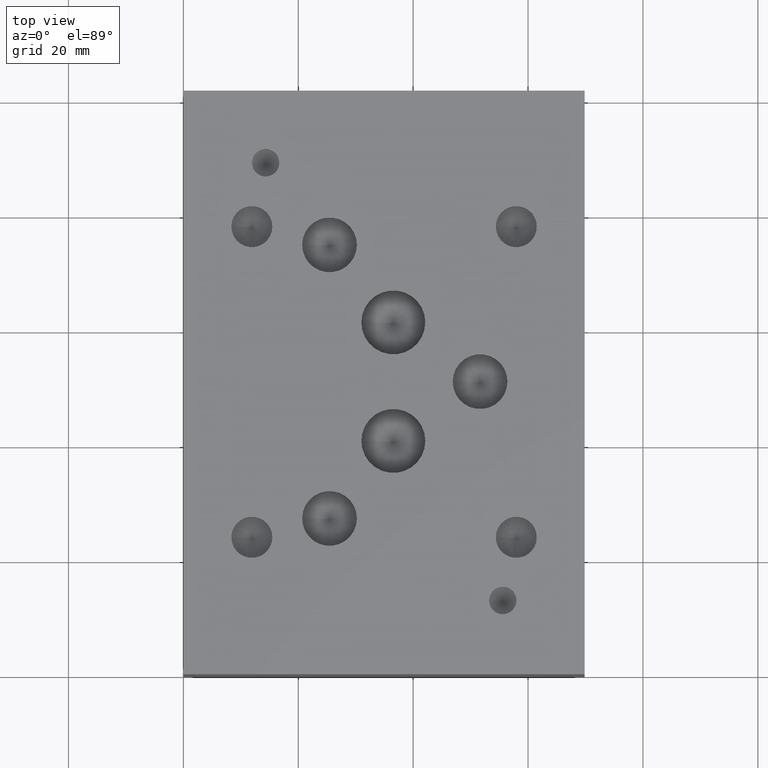
[diagram: clean part render]
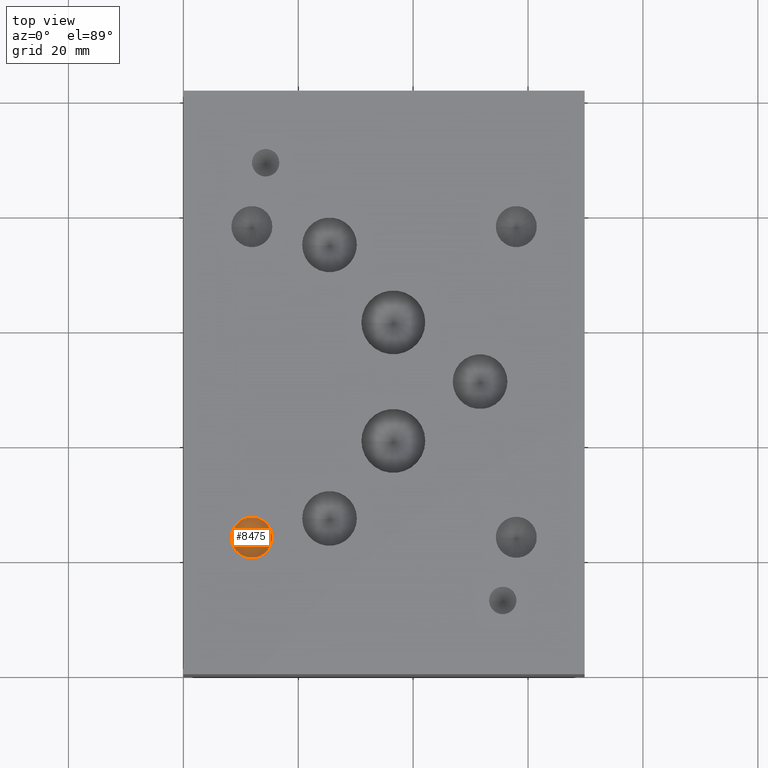
[diagram: same view with one face highlighted and labeled with its STEP entity id]
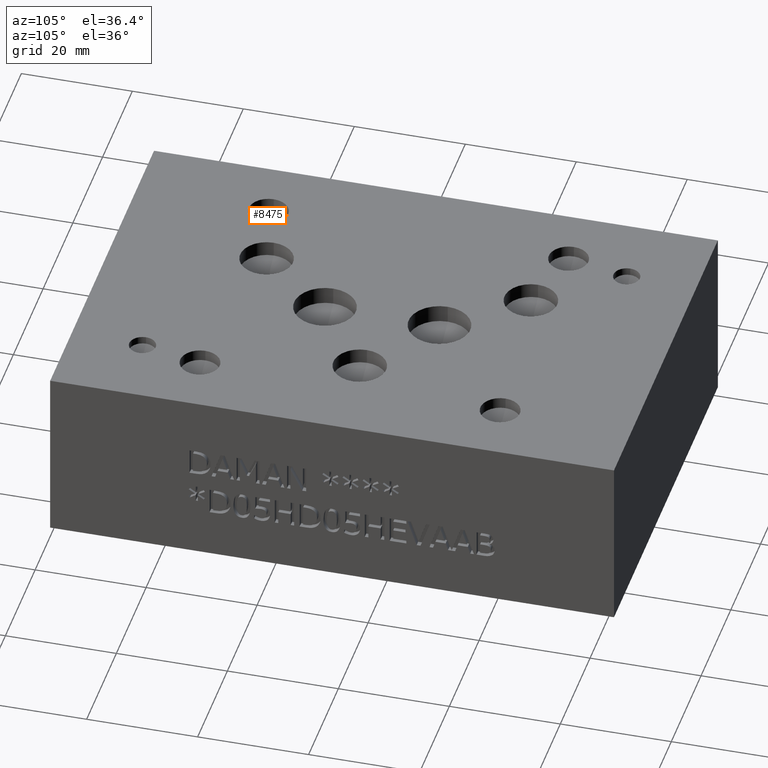
[diagram: same view with one face highlighted and labeled with its STEP entity id]
A machine part, top view. The second image highlights one B-rep face of the part: STEP entity #8475.
A second angle (auxiliary view) of the same face is appended — the face is thin or edge-on in the first view.
In plain terms, the highlighted conical surface has half-angle 60 deg.
Its self-contained STEP definition (entity closure, byte-faithful):
#112=CIRCLE('',#8897,3.5687);
#113=CIRCLE('',#8898,3.5687);
#164=CONICAL_SURFACE('',#8896,1.78435,1.0471975511966);
#900=FACE_OUTER_BOUND('',#1366,.T.);
#1366=EDGE_LOOP('',(#7269,#7270,#7271,#7272));
#2260=LINE('',#14116,#3134);
#3134=VECTOR('',#10576,1.78435);
#3905=VERTEX_POINT('',#14112);
#3906=VERTEX_POINT('',#14113);
#3907=VERTEX_POINT('',#14115);
#5050=EDGE_CURVE('',#3905,#3906,#112,.T.);
#5051=EDGE_CURVE('',#3906,#3907,#2260,.T.);
#5052=EDGE_CURVE('',#3906,#3905,#113,.T.);
#7269=ORIENTED_EDGE('',*,*,#5050,.T.);
#7270=ORIENTED_EDGE('',*,*,#5051,.T.);
#7271=ORIENTED_EDGE('',*,*,#5051,.F.);
#7272=ORIENTED_EDGE('',*,*,#5052,.T.);
#8475=ADVANCED_FACE('',(#900),#164,.F.);
#8896=AXIS2_PLACEMENT_3D('',#14111,#10572,#10573);
#8897=AXIS2_PLACEMENT_3D('',#14114,#10574,#10575);
#8898=AXIS2_PLACEMENT_3D('',#14117,#10577,#10578);
#10572=DIRECTION('center_axis',(0.,0.,1.));
#10573=DIRECTION('ref_axis',(1.,0.,0.));
#10574=DIRECTION('center_axis',(0.,0.,1.));
#10575=DIRECTION('ref_axis',(1.,0.,0.));
#10576=DIRECTION('',(0.866025403784439,1.06057523872491E-16,-0.5));
#10577=DIRECTION('center_axis',(0.,0.,1.));
#10578=DIRECTION('ref_axis',(1.,0.,0.));
#14111=CARTESIAN_POINT('Origin',(11.9126,23.8125,28.6594150471715));
#14112=CARTESIAN_POINT('',(15.4813,23.8125,29.68961));
#14113=CARTESIAN_POINT('',(8.3439,23.8125,29.68961));
#14114=CARTESIAN_POINT('Origin',(11.9126,23.8125,29.68961));
#14115=CARTESIAN_POINT('',(11.9126,23.8125,27.629220094343));
#14116=CARTESIAN_POINT('',(10.12825,23.8125,28.6594150471715));
#14117=CARTESIAN_POINT('Origin',(11.9126,23.8125,29.68961));